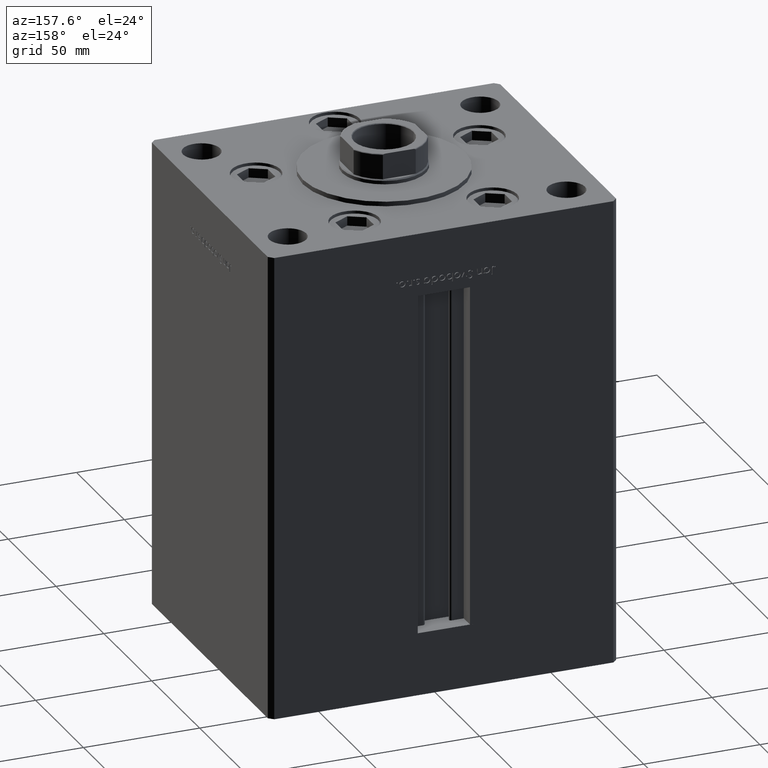
[diagram: clean part render]
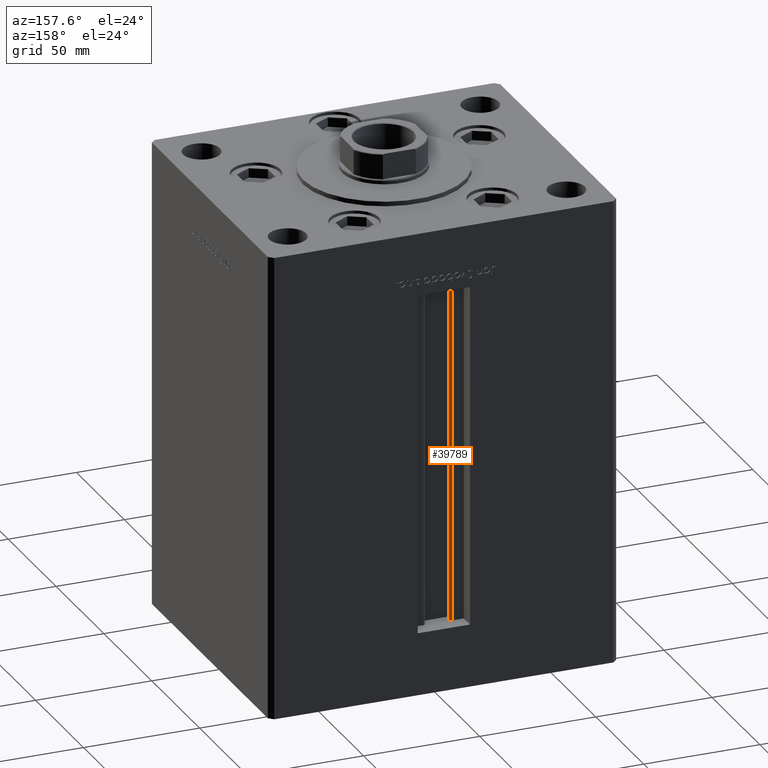
[diagram: same view with one face highlighted and labeled with its STEP entity id]
A machine part, auxiliary view. The second image highlights one B-rep face of the part: STEP entity #39789.
In plain terms, the highlighted cylindrical surface (edge-blend (fillet) strip) has radius 0.9333 mm, axis along (0, 0, 1).
Its self-contained STEP definition (entity closure, byte-faithful):
#519 = CARTESIAN_POINT ( 'NONE',  ( -6.183333333334001480, 55.06666666666598786, 0.000000000000000000 ) ) ;
#583 = CARTESIAN_POINT ( 'NONE',  ( -5.249999999999994671, 55.06666666666598786, 0.000000000000000000 ) ) ;
#4488 = CARTESIAN_POINT ( 'NONE',  ( -5.249999999999994671, 55.06666666666598786, 0.000000000000000000 ) ) ;
#5354 = VERTEX_POINT ( 'NONE', #33124 ) ;
#7255 = CARTESIAN_POINT ( 'NONE',  ( -6.183333333334001480, 55.06666666666598786, 0.000000000000000000 ) ) ;
#8121 = EDGE_CURVE ( 'NONE', #28341, #35697, #24715, .T. ) ;
#9824 = ORIENTED_EDGE ( 'NONE', *, *, #40757, .T. ) ;
#10865 = ORIENTED_EDGE ( 'NONE', *, *, #8121, .T. ) ;
#13158 = DIRECTION ( 'NONE',  ( -0.000000000000000000, -0.000000000000000000, 1.000000000000000000 ) ) ;
#13389 = CARTESIAN_POINT ( 'NONE',  ( -6.183333333334001480, 55.99999999999999289, 0.000000000000000000 ) ) ;
#16355 = VECTOR ( 'NONE', #29410, 1000.000000000000000 ) ;
#16586 = DIRECTION ( 'NONE',  ( 1.000000000000000000, 0.000000000000000000, 0.000000000000000000 ) ) ;
#18892 = CIRCLE ( 'NONE', #45044, 0.9333333333340068094 ) ;
#23311 = DIRECTION ( 'NONE',  ( -0.000000000000000000, -0.000000000000000000, -1.000000000000000000 ) ) ;
#23567 = DIRECTION ( 'NONE',  ( 1.000000000000000000, 0.000000000000000000, 0.000000000000000000 ) ) ;
#23854 = VERTEX_POINT ( 'NONE', #583 ) ;
#24715 = LINE ( 'NONE', #45050, #48722 ) ;
#27322 = DIRECTION ( 'NONE',  ( 1.000000000000000000, 0.000000000000000000, 0.000000000000000000 ) ) ;
#28341 = VERTEX_POINT ( 'NONE', #13389 ) ;
#29410 = DIRECTION ( 'NONE',  ( -0.000000000000000000, -0.000000000000000000, 1.000000000000000000 ) ) ;
#33124 = CARTESIAN_POINT ( 'NONE',  ( -5.249999999999994671, 55.06666666666598786, 147.0000000000000000 ) ) ;
#33161 = FACE_OUTER_BOUND ( 'NONE', #41101, .T. ) ;
#35697 = VERTEX_POINT ( 'NONE', #46966 ) ;
#36626 = CYLINDRICAL_SURFACE ( 'NONE', #44894, 0.9333333333340068094 ) ;
#37871 = LINE ( 'NONE', #4488, #16355 ) ;
#39735 = DIRECTION ( 'NONE',  ( 0.000000000000000000, 0.000000000000000000, -1.000000000000000000 ) ) ;
#39789 = ADVANCED_FACE ( 'NONE', ( #33161 ), #36626, .T. ) ;
#40757 = EDGE_CURVE ( 'NONE', #35697, #5354, #41491, .T. ) ;
#41101 = EDGE_LOOP ( 'NONE', ( #48331, #48795, #10865, #9824 ) ) ;
#41491 = CIRCLE ( 'NONE', #44100, 0.9333333333340068094 ) ;
#43666 = EDGE_CURVE ( 'NONE', #23854, #5354, #37871, .T. ) ;
#44100 = AXIS2_PLACEMENT_3D ( 'NONE', #51075, #39735, #27322 ) ;
#44894 = AXIS2_PLACEMENT_3D ( 'NONE', #519, #13158, #16586 ) ;
#45044 = AXIS2_PLACEMENT_3D ( 'NONE', #7255, #23311, #23567 ) ;
#45050 = CARTESIAN_POINT ( 'NONE',  ( -6.183333333334001480, 55.99999999999999289, 0.000000000000000000 ) ) ;
#46966 = CARTESIAN_POINT ( 'NONE',  ( -6.183333333334001480, 55.99999999999999289, 147.0000000000000000 ) ) ;
#48331 = ORIENTED_EDGE ( 'NONE', *, *, #43666, .F. ) ;
#48722 = VECTOR ( 'NONE', #48728, 1000.000000000000000 ) ;
#48728 = DIRECTION ( 'NONE',  ( -0.000000000000000000, -0.000000000000000000, 1.000000000000000000 ) ) ;
#48795 = ORIENTED_EDGE ( 'NONE', *, *, #49667, .F. ) ;
#49667 = EDGE_CURVE ( 'NONE', #28341, #23854, #18892, .T. ) ;
#51075 = CARTESIAN_POINT ( 'NONE',  ( -6.183333333334001480, 55.06666666666598786, 147.0000000000000000 ) ) ;